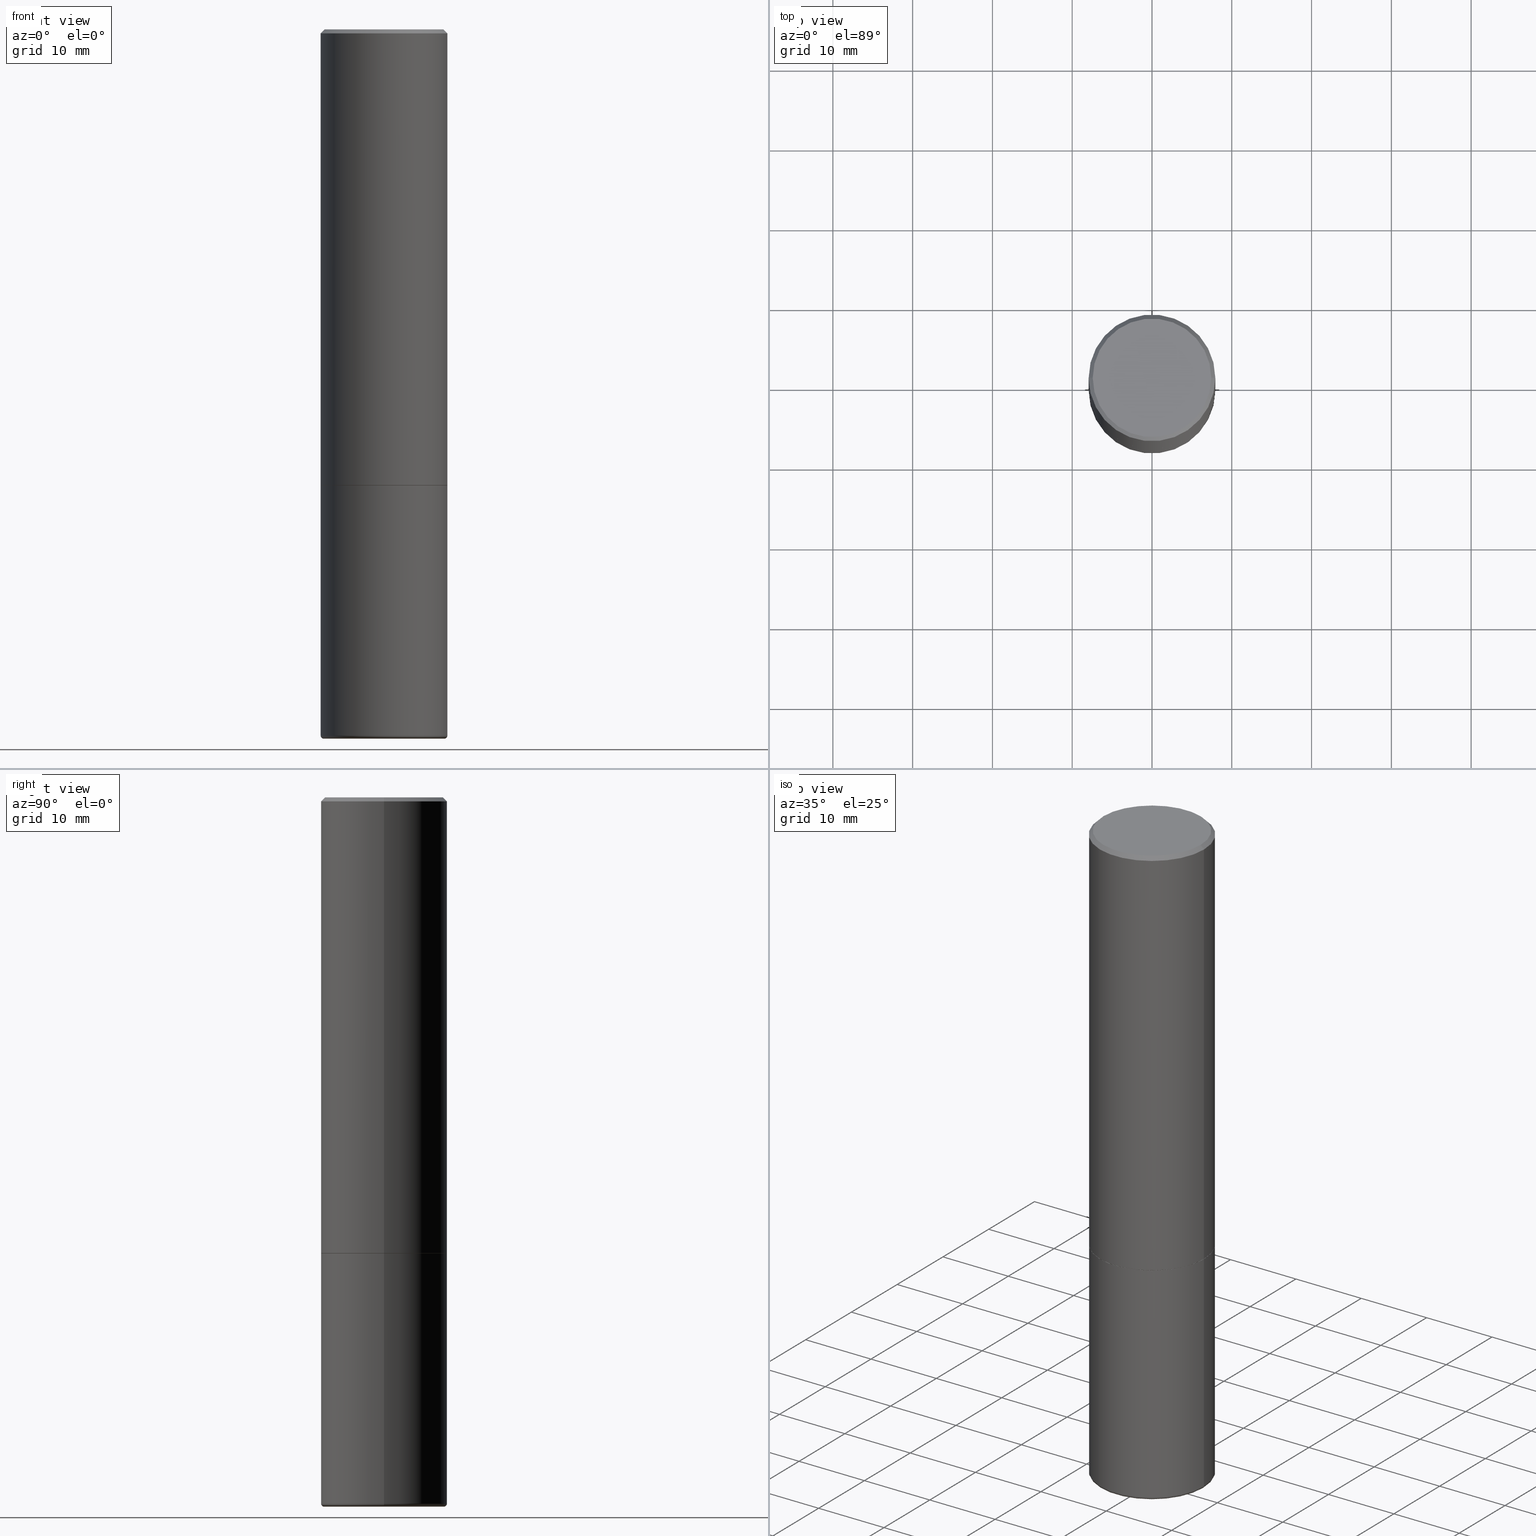
[diagram: canonical four-view strip — front | top / right | iso, engineering-drawing reading convention]
A machine part, canonical four-view strip (front | top / right | iso — engineering-drawing reading convention). The complete STEP part file that produces these views, byte-faithful:
ISO-10303-21;
HEADER;
FILE_DESCRIPTION (( 'STEP AP203' ),
    '1' );
FILE_NAME ('38137.STEP',
    '2023-03-22T20:22:35',
    ( '' ),
    ( '' ),
    'SwSTEP 2.0',
    'SolidWorks 2022',
    '' );
FILE_SCHEMA (( 'CONFIG_CONTROL_DESIGN' ));
ENDSEC;

DATA;
#1 = CALENDAR_DATE ( 2023, 22, 3 ) ;
#2 = EDGE_CURVE ( 'NONE', #92, #56, #296, .T. ) ;
#3 = CARTESIAN_POINT ( 'NONE',  ( 5.499859345110370619E-29, -7.852341531058232286E-15, -2.248999999999999222 ) ) ;
#4 = ORIENTED_EDGE ( 'NONE', *, *, #177, .F. ) ;
#5 = APPROVAL_DATE_TIME ( #42, #321 ) ;
#6 = DIRECTION ( 'NONE',  ( 1.000000000000000000, -6.982962677686265922E-15, 0.000000000000000000 ) ) ;
#7 = APPROVAL_STATUS ( 'not_yet_approved' ) ;
#8 = VERTEX_POINT ( 'NONE', #379 ) ;
#9 = ADVANCED_FACE ( 'NONE', ( #75 ), #206, .T. ) ;
#10 = CONICAL_SURFACE ( 'NONE', #315, 0.3114999999999999991, 0.7853981633972775267 ) ;
#11 = CIRCLE ( 'NONE', #86, 0.3125000000000002776 ) ;
#12 = CYLINDRICAL_SURFACE ( 'NONE', #93, 0.3124999999999998890 ) ;
#13 = CC_DESIGN_DATE_AND_TIME_ASSIGNMENT ( #84, #165, ( #101 ) ) ;
#14 = EDGE_CURVE ( 'NONE', #394, #104, #85, .T. ) ;
#15 = CARTESIAN_POINT ( 'NONE',  ( -0.3124999999999998335, 2.112346210000093866E-15, -0.02000000000000001776 ) ) ;
#16 = CARTESIAN_POINT ( 'NONE',  ( 0.3124999999999998890, -2.182175836776957558E-15, 1.523805242436229235E-29 ) ) ;
#17 = DIRECTION ( 'NONE',  ( 0.9986295347545742773, -7.033825938271996334E-15, -0.05233595624293597981 ) ) ;
#18 = PLANE ( 'NONE',  #402 ) ;
#19 = DIRECTION ( 'NONE',  ( -1.000000000000000000, 6.982962677686266711E-15, 0.000000000000000000 ) ) ;
#20 = VECTOR ( 'NONE', #422, 39.37007874015748143 ) ;
#21 = DIRECTION ( 'NONE',  ( -1.000000000000000000, 6.982962677686266711E-15, 0.000000000000000000 ) ) ;
#22 = ORIENTED_EDGE ( 'NONE', *, *, #431, .F. ) ;
#23 = DIRECTION ( 'NONE',  ( -1.000000000000000000, 7.105427357600985293E-15, 0.000000000000000000 ) ) ;
#24 = CARTESIAN_POINT ( 'NONE',  ( -1.043851414335219820E-46, 1.490343170380447200E-32, 4.268512490100411279E-18 ) ) ;
#25 = EDGE_LOOP ( 'NONE', ( #160, #432 ) ) ;
#26 = ADVANCED_FACE ( 'NONE', ( #204 ), #10, .T. ) ;
#27 = CONICAL_SURFACE ( 'NONE', #270, 751.2258538476803551, 1.518436449235074592 ) ;
#28 = EDGE_CURVE ( 'NONE', #336, #124, #406, .T. ) ;
#29 = EDGE_LOOP ( 'NONE', ( #393, #36 ) ) ;
#30 = ORIENTED_EDGE ( 'NONE', *, *, #215, .T. ) ;
#31 = CONICAL_SURFACE ( 'NONE', #217, 0.3114999999999999991, 0.7853981633972775267 ) ;
#32 = LOCAL_TIME ( 16, 22, 35.00000000000000000, #376 ) ;
#33 = ORIENTED_EDGE ( 'NONE', *, *, #278, .F. ) ;
#34 = PERSON_AND_ORGANIZATION_ROLE ( 'classification_officer' ) ;
#35 = ORIENTED_EDGE ( 'NONE', *, *, #163, .F. ) ;
#36 = ORIENTED_EDGE ( 'NONE', *, *, #163, .T. ) ;
#37 = PERSON_AND_ORGANIZATION_ROLE ( 'creator' ) ;
#38 = CARTESIAN_POINT ( 'NONE',  ( -0.3114999999999999991, -5.642492390504364798E-15, -2.249999999999999556 ) ) ;
#39 = LOCAL_TIME ( 16, 22, 35.00000000000000000, #352 ) ;
#40 = CARTESIAN_POINT ( 'NONE',  ( -0.3125000000000000000, -7.791412577036126966E-15, -2.249999999999999556 ) ) ;
#41 = ORIENTED_EDGE ( 'NONE', *, *, #196, .F. ) ;
#42 = DATE_AND_TIME ( #111, #241 ) ;
#43 = CYLINDRICAL_SURFACE ( 'NONE', #109, 0.3125000000000001665 ) ;
#44 = CARTESIAN_POINT ( 'NONE',  ( 4.890937612370276662E-31, -6.982962677686296539E-17, -0.02000000000000001776 ) ) ;
#45 = APPROVAL_ROLE ( '' ) ;
#46 = MECHANICAL_CONTEXT ( 'NONE', #176, 'mechanical' ) ;
#47 = DIRECTION ( 'NONE',  ( -1.000000000000000000, 6.982962677686265922E-15, -4.876176775795935793E-29 ) ) ;
#48 = CC_DESIGN_PERSON_AND_ORGANIZATION_ASSIGNMENT ( #404, #212, ( #232 ) ) ;
#49 = LINE ( 'NONE', #323, #344 ) ;
#50 = DIRECTION ( 'NONE',  ( -1.000000000000000000, 6.982962677686265133E-15, 0.000000000000000000 ) ) ;
#51 = VECTOR ( 'NONE', #89, 39.37007874015748854 ) ;
#52 = CARTESIAN_POINT ( 'NONE',  ( 8.518435570549975034E-29, -1.216972629788728428E-14, -3.484449827831947566 ) ) ;
#53 = DIRECTION ( 'NONE',  ( 2.445468806185136597E-29, -3.491481338843145583E-15, -1.000000000000000000 ) ) ;
#54 = ORIENTED_EDGE ( 'NONE', *, *, #302, .F. ) ;
#55 = DIRECTION ( 'NONE',  ( 1.000000000000000000, -6.982962677686265133E-15, 0.000000000000000000 ) ) ;
#56 = VERTEX_POINT ( 'NONE', #172 ) ;
#57 = APPROVAL ( #77, 'UNSPECIFIED' ) ;
#58 = ORIENTED_EDGE ( 'NONE', *, *, #278, .T. ) ;
#59 = CYLINDRICAL_SURFACE ( 'NONE', #304, 0.3124999999999998890 ) ;
#60 = DIMENSIONAL_EXPONENTS ( 1.000000000000000000, 0.000000000000000000, 0.000000000000000000, 0.000000000000000000, 0.000000000000000000, 0.000000000000000000, 0.000000000000000000 ) ;
#61 =( LENGTH_UNIT ( ) NAMED_UNIT ( * ) SI_UNIT ( $, .METRE. ) );
#62 = DIRECTION ( 'NONE',  ( 1.000000000000000000, -6.982962677686265922E-15, 4.876176775795935793E-29 ) ) ;
#63 = AXIS2_PLACEMENT_3D ( 'NONE', #218, #258, #90 ) ;
#64 = CC_DESIGN_SECURITY_CLASSIFICATION ( #101, ( #398 ) ) ;
#65 = DESIGN_CONTEXT ( 'detailed design', #142, 'design' ) ;
#66 = EDGE_CURVE ( 'NONE', #336, #92, #242, .T. ) ;
#67 = ORIENTED_EDGE ( 'NONE', *, *, #254, .T. ) ;
#68 = DIRECTION ( 'NONE',  ( -2.445468806185136597E-29, 3.491481338843145583E-15, 1.000000000000000000 ) ) ;
#69 = PRODUCT_DEFINITION_SHAPE ( 'NONE', 'NONE',  #232 ) ;
#70 = AXIS2_PLACEMENT_3D ( 'NONE', #96, #388, #358 ) ;
#71 = ORIENTED_EDGE ( 'NONE', *, *, #203, .F. ) ;
#72 = ORIENTED_EDGE ( 'NONE', *, *, #357, .T. ) ;
#73 = CARTESIAN_POINT ( 'NONE',  ( -0.3124999999999998890, 2.220446049250312292E-15, -1.537167215704657391E-29 ) ) ;
#74 = CARTESIAN_POINT ( 'NONE',  ( 5.502304813916556222E-29, -7.855833012397076871E-15, -2.249999999999999556 ) ) ;
#75 = FACE_OUTER_BOUND ( 'NONE', #338, .T. ) ;
#76 = AXIS2_PLACEMENT_3D ( 'NONE', #108, #138, #47 ) ;
#77 = APPROVAL_STATUS ( 'not_yet_approved' ) ;
#78 = APPLICATION_PROTOCOL_DEFINITION ( 'international standard', 'config_control_design', 1994, #142 ) ;
#79 = DIRECTION ( 'NONE',  ( -1.000000000000000000, 6.982962677686265133E-15, 0.000000000000000000 ) ) ;
#80 = CC_DESIGN_PERSON_AND_ORGANIZATION_ASSIGNMENT ( #276, #34, ( #101 ) ) ;
#81 = DIRECTION ( 'NONE',  ( -2.445468806185136597E-29, 3.491481338843145583E-15, 1.000000000000000000 ) ) ;
#82 = DIRECTION ( 'NONE',  ( -2.445468806185136597E-29, 3.491481338843145583E-15, 1.000000000000000000 ) ) ;
#83 = DIRECTION ( 'NONE',  ( -2.445468806185136597E-29, 3.491481338843145583E-15, 1.000000000000000000 ) ) ;
#84 = DATE_AND_TIME ( #312, #345 ) ;
#85 = CIRCLE ( 'NONE', #396, 0.3114999999999999991 ) ;
#86 = AXIS2_PLACEMENT_3D ( 'NONE', #181, #415, #320 ) ;
#87 = ORIENTED_EDGE ( 'NONE', *, *, #294, .F. ) ;
#88 = DIRECTION ( 'NONE',  ( 0.000000000000000000, 0.000000000000000000, 1.000000000000000000 ) ) ;
#89 = DIRECTION ( 'NONE',  ( -0.9986295347545742773, 6.790662755453670044E-15, -0.05233595624293597981 ) ) ;
#90 = DIRECTION ( 'NONE',  ( 1.000000000000000000, -6.982962677686265922E-15, 0.000000000000000000 ) ) ;
#91 = AXIS2_PLACEMENT_3D ( 'NONE', #348, #291, #117 ) ;
#92 = VERTEX_POINT ( 'NONE', #399 ) ;
#93 = AXIS2_PLACEMENT_3D ( 'NONE', #175, #316, #325 ) ;
#94 = DIRECTION ( 'NONE',  ( -2.445468806185136597E-29, 3.491481338843145583E-15, 1.000000000000000000 ) ) ;
#95 = CARTESIAN_POINT ( 'NONE',  ( -0.3125000000000001665, 2.220446049250314264E-15, -1.537167215704658792E-29 ) ) ;
#96 = CARTESIAN_POINT ( 'NONE',  ( 8.522509061005313517E-29, -1.216788424017580796E-14, -3.485020556978680517 ) ) ;
#97 = AXIS2_PLACEMENT_3D ( 'NONE', #310, #231, #188 ) ;
#98 = CARTESIAN_POINT ( 'NONE',  ( -0.3114999999999999991, -5.637193936156142396E-15, -2.249999999999999556 ) ) ;
#99 = LENGTH_MEASURE_WITH_UNIT ( LENGTH_MEASURE( 0.02539999999999999897 ), #61 );
#100 = EDGE_LOOP ( 'NONE', ( #295, #195, #243, #205 ) ) ;
#101 = SECURITY_CLASSIFICATION ( '', '', #382 ) ;
#102 = ORIENTED_EDGE ( 'NONE', *, *, #254, .F. ) ;
#103 = CALENDAR_DATE ( 2023, 22, 3 ) ;
#104 = VERTEX_POINT ( 'NONE', #98 ) ;
#105 = FACE_OUTER_BOUND ( 'NONE', #395, .T. ) ;
#106 = APPLICATION_PROTOCOL_DEFINITION ( 'international standard', 'config_control_design', 1994, #176 ) ;
#107 = APPROVAL_ROLE ( '' ) ;
#108 = CARTESIAN_POINT ( 'NONE',  ( 2.182175836777013173E-15, 0.3124999999999921729, -2.250000000000000444 ) ) ;
#109 = AXIS2_PLACEMENT_3D ( 'NONE', #183, #113, #319 ) ;
#110 = CC_DESIGN_PERSON_AND_ORGANIZATION_ASSIGNMENT ( #247, #377, ( #123 ) ) ;
#111 = CALENDAR_DATE ( 2023, 22, 3 ) ;
#112 = DIRECTION ( 'NONE',  ( 1.000000000000000000, -6.982962677686265922E-15, 0.000000000000000000 ) ) ;
#113 = DIRECTION ( 'NONE',  ( -2.445468806185136597E-29, 3.491481338843145583E-15, 1.000000000000000000 ) ) ;
#114 = AXIS2_PLACEMENT_3D ( 'NONE', #192, #193, #264 ) ;
#115 = CIRCLE ( 'NONE', #368, 0.01500000000000028394 ) ;
#116 = ORGANIZATION ( 'UNSPECIFIED', 'UNSPECIFIED', '' ) ;
#117 = DIRECTION ( 'NONE',  ( 1.000000000000000000, -6.982962677686269077E-15, 0.000000000000000000 ) ) ;
#118 = DIRECTION ( 'NONE',  ( -2.438088387897960049E-29, 3.491481338843145188E-15, 1.000000000000000000 ) ) ;
#119 = CARTESIAN_POINT ( 'NONE',  ( 0.2924999999999998157, -2.110215457714318748E-15, 4.268512490114932791E-18 ) ) ;
#120 = CARTESIAN_POINT ( 'NONE',  ( 5.502304813916556222E-29, -7.855833012397076871E-15, -2.249999999999999556 ) ) ;
#121 = CARTESIAN_POINT ( 'NONE',  ( 0.3114999999999999991, -1.003102588649634920E-14, -2.249999999999999556 ) ) ;
#122 = CIRCLE ( 'NONE', #327, 0.2967149606563558861 ) ;
#123 = PRODUCT ( '38137', '38137', '', ( #46 ) ) ;
#124 = VERTEX_POINT ( 'NONE', #397 ) ;
#125 = ORIENTED_EDGE ( 'NONE', *, *, #294, .T. ) ;
#126 = ORIENTED_EDGE ( 'NONE', *, *, #2, .F. ) ;
#127 = EDGE_LOOP ( 'NONE', ( #4, #273, #150, #136 ) ) ;
#128 = ORIENTED_EDGE ( 'NONE', *, *, #366, .F. ) ;
#129 = EDGE_CURVE ( 'NONE', #184, #269, #290, .T. ) ;
#130 = CARTESIAN_POINT ( 'NONE',  ( 8.522509061005313517E-29, -1.216788424017580796E-14, -3.485020556978680517 ) ) ;
#131 = AXIS2_PLACEMENT_3D ( 'NONE', #440, #88, #219 ) ;
#132 =( NAMED_UNIT ( * ) PLANE_ANGLE_UNIT ( ) SI_UNIT ( $, .RADIAN. ) );
#133 = CARTESIAN_POINT ( 'NONE',  ( 0.3125000000000002776, -1.435006007695276788E-14, -3.485020556978680073 ) ) ;
#134 = EDGE_LOOP ( 'NONE', ( #236, #162 ) ) ;
#135 = DATE_AND_TIME ( #174, #39 ) ;
#136 = ORIENTED_EDGE ( 'NONE', *, *, #2, .T. ) ;
#137 = COORDINATED_UNIVERSAL_TIME_OFFSET ( 5, 0, .BEHIND. ) ;
#138 = DIRECTION ( 'NONE',  ( 2.438088387897960049E-29, -3.491481338843145188E-15, -1.000000000000000000 ) ) ;
#139 = AXIS2_PLACEMENT_3D ( 'NONE', #130, #161, #441 ) ;
#140 = CONICAL_SURFACE ( 'NONE', #356, 0.3124999999999998335, 0.7853981633974476129 ) ;
#141 = CARTESIAN_POINT ( 'NONE',  ( -0.3125000000000002776, -7.791412577036125389E-15, -3.485020556978680073 ) ) ;
#142 = APPLICATION_CONTEXT ( 'configuration controlled 3d designs of mechanical parts and assemblies' ) ;
#143 = ORIENTED_EDGE ( 'NONE', *, *, #145, .F. ) ;
#144 = DIRECTION ( 'NONE',  ( 1.000000000000000000, -6.982962677686265133E-15, 0.000000000000000000 ) ) ;
#145 = EDGE_CURVE ( 'NONE', #8, #227, #224, .T. ) ;
#146 = CARTESIAN_POINT ( 'NONE',  ( 0.000000000000000000, 0.000000000000000000, 0.000000000000000000 ) ) ;
#147 = CARTESIAN_POINT ( 'NONE',  ( -0.2924999999999998157, 2.077431396611662611E-15, 4.268512490086005323E-18 ) ) ;
#148 = APPROVAL_PERSON_ORGANIZATION ( #303, #151, #216 ) ;
#149 = FACE_OUTER_BOUND ( 'NONE', #134, .T. ) ;
#150 = ORIENTED_EDGE ( 'NONE', *, *, #200, .T. ) ;
#151 = APPROVAL ( #7, 'UNSPECIFIED' ) ;
#152 = VECTOR ( 'NONE', #167, 39.37007874015748143 ) ;
#153 = EDGE_LOOP ( 'NONE', ( #409, #365, #143 ) ) ;
#154 = ADVANCED_FACE ( 'NONE', ( #423 ), #43, .T. ) ;
#155 = ORIENTED_EDGE ( 'NONE', *, *, #215, .F. ) ;
#156 = ADVANCED_FACE ( 'NONE', ( #359 ), #390, .T. ) ;
#157 = CIRCLE ( 'NONE', #197, 0.3125000000000000000 ) ;
#158 = VECTOR ( 'NONE', #349, 39.37007874015748143 ) ;
#159 = DIRECTION ( 'NONE',  ( -2.445468806185136597E-29, 3.491481338843145583E-15, 1.000000000000000000 ) ) ;
#160 = ORIENTED_EDGE ( 'NONE', *, *, #129, .T. ) ;
#161 = DIRECTION ( 'NONE',  ( -2.445468806185136597E-29, 3.491481338843145583E-15, 1.000000000000000000 ) ) ;
#162 = ORIENTED_EDGE ( 'NONE', *, *, #433, .F. ) ;
#163 = EDGE_CURVE ( 'NONE', #324, #341, #157, .T. ) ;
#164 = DIRECTION ( 'NONE',  ( -2.445468806185136597E-29, 3.491481338843145583E-15, 1.000000000000000000 ) ) ;
#165 = DATE_TIME_ROLE ( 'classification_date' ) ;
#166 = PERSON_AND_ORGANIZATION ( #274, #116 ) ;
#167 = DIRECTION ( 'NONE',  ( -0.7071067811864267805, 7.493145998869918709E-15, 0.7071067811866682540 ) ) ;
#168 = CONICAL_SURFACE ( 'NONE', #260, 0.3124999999999998335, 0.7853981633974476129 ) ;
#169 = APPROVAL_PERSON_ORGANIZATION ( #281, #57, #107 ) ;
#170 = CC_DESIGN_PERSON_AND_ORGANIZATION_ASSIGNMENT ( #166, #305, ( #398 ) ) ;
#171 = APPROVAL_DATE_TIME ( #135, #57 ) ;
#172 = CARTESIAN_POINT ( 'NONE',  ( 0.3124999999999998335, -2.213735251080465334E-15, -0.02000000000000001776 ) ) ;
#173 = DIRECTION ( 'NONE',  ( -2.445468806185136877E-29, 3.491481338843145188E-15, 1.000000000000000000 ) ) ;
#174 = CALENDAR_DATE ( 2023, 22, 3 ) ;
#175 = CARTESIAN_POINT ( 'NONE',  ( 0.000000000000000000, 0.000000000000000000, 0.000000000000000000 ) ) ;
#176 = APPLICATION_CONTEXT ( 'configuration controlled 3d designs of mechanical parts and assemblies' ) ;
#177 = EDGE_CURVE ( 'NONE', #269, #56, #353, .T. ) ;
#178 = LINE ( 'NONE', #15, #259 ) ;
#179 = CLOSED_SHELL ( 'NONE', ( #26, #209, #298, #363, #266, #221, #425, #292 ) ) ;
#180 = AXIS2_PLACEMENT_3D ( 'NONE', #438, #339, #301 ) ;
#181 = CARTESIAN_POINT ( 'NONE',  ( 8.522509061005312396E-29, -1.216788424017580638E-14, -3.485020556978680073 ) ) ;
#182 = EDGE_CURVE ( 'NONE', #271, #227, #49, .T. ) ;
#183 = CARTESIAN_POINT ( 'NONE',  ( 0.000000000000000000, 0.000000000000000000, 0.000000000000000000 ) ) ;
#184 = VERTEX_POINT ( 'NONE', #147 ) ;
#185 = DIRECTION ( 'NONE',  ( 0.7071067811865469066, -7.319954787623252890E-15, -0.7071067811865479058 ) ) ;
#186 = ORIENTED_EDGE ( 'NONE', *, *, #14, .T. ) ;
#187 = DIRECTION ( 'NONE',  ( -2.445468806185136597E-29, 3.491481338843145583E-15, 1.000000000000000000 ) ) ;
#188 = DIRECTION ( 'NONE',  ( 1.000000000000000000, -6.982962677686266711E-15, 0.000000000000000000 ) ) ;
#189 = LINE ( 'NONE', #364, #225 ) ;
#190 = AXIS2_PLACEMENT_3D ( 'NONE', #3, #414, #283 ) ;
#191 = DIRECTION ( 'NONE',  ( 2.445468806185136597E-29, -3.491481338843145583E-15, -1.000000000000000000 ) ) ;
#192 = CARTESIAN_POINT ( 'NONE',  ( -1.043851414335219820E-46, 1.490343170380447200E-32, 4.268512490100411279E-18 ) ) ;
#193 = DIRECTION ( 'NONE',  ( -2.445468806185136597E-29, 3.491481338843145583E-15, 1.000000000000000000 ) ) ;
#194 = FACE_OUTER_BOUND ( 'NONE', #300, .T. ) ;
#195 = ORIENTED_EDGE ( 'NONE', *, *, #177, .T. ) ;
#196 = EDGE_CURVE ( 'NONE', #124, #336, #417, .T. ) ;
#197 = AXIS2_PLACEMENT_3D ( 'NONE', #262, #94, #55 ) ;
#198 = AXIS2_PLACEMENT_3D ( 'NONE', #263, #68, #332 ) ;
#199 = ORIENTED_EDGE ( 'NONE', *, *, #66, .T. ) ;
#200 = EDGE_CURVE ( 'NONE', #184, #92, #178, .T. ) ;
#201 = EDGE_LOOP ( 'NONE', ( #240, #199, #429, #102 ) ) ;
#202 = EDGE_LOOP ( 'NONE', ( #128, #400, #430, #360 ) ) ;
#203 = EDGE_CURVE ( 'NONE', #210, #324, #230, .T. ) ;
#204 = FACE_OUTER_BOUND ( 'NONE', #373, .T. ) ;
#205 = ORIENTED_EDGE ( 'NONE', *, *, #200, .F. ) ;
#206 = TOROIDAL_SURFACE ( 'NONE', #139, 0.2974999999999999867, 0.01500000000000027527 ) ;
#207 = CIRCLE ( 'NONE', #97, 0.3124999999999998335 ) ;
#208 = CARTESIAN_POINT ( 'NONE',  ( 5.502304813916556222E-29, -7.855833012397076871E-15, -2.249999999999999556 ) ) ;
#209 = ADVANCED_FACE ( 'NONE', ( #424 ), #59, .T. ) ;
#210 = VERTEX_POINT ( 'NONE', #141 ) ;
#211 = CARTESIAN_POINT ( 'NONE',  ( 5.502304813916556222E-29, -7.855833012397076871E-15, -2.249999999999999556 ) ) ;
#212 = PERSON_AND_ORGANIZATION_ROLE ( 'creator' ) ;
#213 = CARTESIAN_POINT ( 'NONE',  ( 5.502304813916556222E-29, -7.855833012397076871E-15, -2.249999999999999556 ) ) ;
#214 = DIRECTION ( 'NONE',  ( 1.000000000000000000, -6.982962677686266711E-15, 4.876067333457692840E-29 ) ) ;
#215 = EDGE_CURVE ( 'NONE', #227, #367, #115, .T. ) ;
#216 = APPROVAL_ROLE ( '' ) ;
#217 = AXIS2_PLACEMENT_3D ( 'NONE', #211, #164, #246 ) ;
#218 = CARTESIAN_POINT ( 'NONE',  ( 8.559140821647976968E-29, -1.222018468595100934E-14, -3.500000000000000000 ) ) ;
#219 = DIRECTION ( 'NONE',  ( 1.000000000000000000, 0.000000000000000000, 0.000000000000000000 ) ) ;
#220 = DIRECTION ( 'NONE',  ( -2.445468806185136597E-29, 3.491481338843145583E-15, 1.000000000000000000 ) ) ;
#221 = ADVANCED_FACE ( 'NONE', ( #288 ), #31, .T. ) ;
#222 = DATE_AND_TIME ( #103, #32 ) ;
#223 = DIRECTION ( 'NONE',  ( -0.7071067811865469066, 2.468850131082251144E-15, -0.7071067811865479058 ) ) ;
#224 = CIRCLE ( 'NONE', #63, 0.2967149606563558861 ) ;
#225 = VECTOR ( 'NONE', #265, 39.37007874015748143 ) ;
#226 = CARTESIAN_POINT ( 'NONE',  ( 1.047994128167879265E-27, -1.496257867800555549E-13, -42.85452856798943344 ) ) ;
#227 = VERTEX_POINT ( 'NONE', #280 ) ;
#228 = DIRECTION ( 'NONE',  ( -2.445468806185136597E-29, 3.491481338843145583E-15, 1.000000000000000000 ) ) ;
#229 = EDGE_LOOP ( 'NONE', ( #328, #403, #67, #126 ) ) ;
#230 = LINE ( 'NONE', #95, #331 ) ;
#231 = DIRECTION ( 'NONE',  ( -2.445468806185136597E-29, 3.491481338843145583E-15, 1.000000000000000000 ) ) ;
#232 = PRODUCT_DEFINITION ( 'UNKNOWN', '', #398, #65 ) ;
#233 = VECTOR ( 'NONE', #185, 39.37007874015748854 ) ;
#234 = LOCAL_TIME ( 16, 22, 35.00000000000000000, #137 ) ;
#235 = EDGE_CURVE ( 'NONE', #367, #210, #239, .T. ) ;
#236 = ORIENTED_EDGE ( 'NONE', *, *, #14, .F. ) ;
#237 = PLANE ( 'NONE',  #180 ) ;
#238 = CC_DESIGN_DATE_AND_TIME_ASSIGNMENT ( #222, #411, ( #232 ) ) ;
#239 = CIRCLE ( 'NONE', #317, 0.3125000000000002776 ) ;
#240 = ORIENTED_EDGE ( 'NONE', *, *, #196, .T. ) ;
#241 = LOCAL_TIME ( 16, 22, 35.00000000000000000, #340 ) ;
#242 = LINE ( 'NONE', #73, #250 ) ;
#243 = ORIENTED_EDGE ( 'NONE', *, *, #248, .T. ) ;
#244 = AXIS2_PLACEMENT_3D ( 'NONE', #24, #82, #214 ) ;
#245 = DIRECTION ( 'NONE',  ( -2.445468806185136597E-29, 3.491481338843145583E-15, 1.000000000000000000 ) ) ;
#246 = DIRECTION ( 'NONE',  ( 1.000000000000000000, -6.982962677686265922E-15, 0.000000000000000000 ) ) ;
#247 = PERSON_AND_ORGANIZATION ( #274, #116 ) ;
#248 = EDGE_CURVE ( 'NONE', #56, #92, #207, .T. ) ;
#249 = CARTESIAN_POINT ( 'NONE',  ( 0.3125000000000000000, -1.003800884917403364E-14, -2.249999999999999556 ) ) ;
#250 = VECTOR ( 'NONE', #436, 39.37007874015748143 ) ;
#251 = COORDINATED_UNIVERSAL_TIME_OFFSET ( 5, 0, .BEHIND. ) ;
#252 = CARTESIAN_POINT ( 'NONE',  ( -3.834747876743175782E-18, -1.216589155001045545E-14, -3.484449827831947566 ) ) ;
#253 = DIRECTION ( 'NONE',  ( -2.445468806185136597E-29, 3.491481338843145583E-15, 1.000000000000000000 ) ) ;
#254 = EDGE_CURVE ( 'NONE', #124, #56, #362, .T. ) ;
#255 = MANIFOLD_SOLID_BREP ( 'Body-Move/Copy2[2]', #179 ) ;
#256 = ORIENTED_EDGE ( 'NONE', *, *, #357, .F. ) ;
#257 = UNCERTAINTY_MEASURE_WITH_UNIT (LENGTH_MEASURE( 1.000000000000000082E-05 ), #333, 'distance_accuracy_value', 'NONE');
#258 = DIRECTION ( 'NONE',  ( -2.445468806185136597E-29, 3.491481338843145583E-15, 1.000000000000000000 ) ) ;
#259 = VECTOR ( 'NONE', #223, 39.37007874015748854 ) ;
#260 = AXIS2_PLACEMENT_3D ( 'NONE', #391, #355, #50 ) ;
#261 = CARTESIAN_POINT ( 'NONE',  ( 0.3125000000000001665, -2.182175836776959530E-15, 1.523805242436230636E-29 ) ) ;
#262 = CARTESIAN_POINT ( 'NONE',  ( 5.502304813916556222E-29, -7.855833012397075293E-15, -2.249999999999999556 ) ) ;
#263 = CARTESIAN_POINT ( 'NONE',  ( 5.502304813916556222E-29, -7.855833012397075293E-15, -2.249999999999999556 ) ) ;
#264 = DIRECTION ( 'NONE',  ( 1.000000000000000000, -6.982962677686266711E-15, 4.876067333457692840E-29 ) ) ;
#265 = DIRECTION ( 'NONE',  ( 0.7071067811864267805, -2.468850131080992517E-15, 0.7071067811866682540 ) ) ;
#266 = ADVANCED_FACE ( 'NONE', ( #289 ), #12, .T. ) ;
#267 = AXIS2_PLACEMENT_3D ( 'NONE', #226, #53, #21 ) ;
#268 = ORIENTED_EDGE ( 'NONE', *, *, #361, .T. ) ;
#269 = VERTEX_POINT ( 'NONE', #119 ) ;
#270 = AXIS2_PLACEMENT_3D ( 'NONE', #378, #191, #19 ) ;
#271 = VERTEX_POINT ( 'NONE', #52 ) ;
#272 = DIRECTION ( 'NONE',  ( 1.000000000000000000, -6.982962677686265922E-15, 0.000000000000000000 ) ) ;
#273 = ORIENTED_EDGE ( 'NONE', *, *, #129, .F. ) ;
#274 = PERSON ( 'UNSPECIFIED', 'UNSPECIFIED', 'UNSPECIFIED', ('UNSPECIFIED'), ('UNSPECIFIED'), ('UNSPECIFIED') ) ;
#275 = AXIS2_PLACEMENT_3D ( 'NONE', #146, #253, #427 ) ;
#276 = PERSON_AND_ORGANIZATION ( #274, #116 ) ;
#277 = AXIS2_PLACEMENT_3D ( 'NONE', #74, #159, #272 ) ;
#278 = EDGE_CURVE ( 'NONE', #8, #210, #389, .T. ) ;
#279 = DIRECTION ( 'NONE',  ( 1.000000000000000000, -6.982962677686265922E-15, 0.000000000000000000 ) ) ;
#280 = CARTESIAN_POINT ( 'NONE',  ( 0.2967149606563558861, -1.429213418212549008E-14, -3.500000000000000000 ) ) ;
#281 = PERSON_AND_ORGANIZATION ( #274, #116 ) ;
#282 = LINE ( 'NONE', #38, #152 ) ;
#283 = DIRECTION ( 'NONE',  ( 1.000000000000000000, -6.982962677686269077E-15, 0.000000000000000000 ) ) ;
#284 = APPROVAL_DATE_TIME ( #347, #151 ) ;
#285 = CIRCLE ( 'NONE', #198, 0.3125000000000000000 ) ;
#286 = DIRECTION ( 'NONE',  ( -6.982962677686266711E-15, -1.000000000000000000, 3.491481338843145583E-15 ) ) ;
#287 = CARTESIAN_POINT ( 'NONE',  ( -0.3125000000000000000, -1.740639529667232739E-15, -2.248999999999999222 ) ) ;
#288 = FACE_OUTER_BOUND ( 'NONE', #202, .T. ) ;
#289 = FACE_OUTER_BOUND ( 'NONE', #229, .T. ) ;
#290 = CIRCLE ( 'NONE', #114, 0.2924999999999998157 ) ;
#291 = DIRECTION ( 'NONE',  ( -2.445468806185136597E-29, 3.491481338843145583E-15, 1.000000000000000000 ) ) ;
#292 = ADVANCED_FACE ( 'NONE', ( #330 ), #237, .F. ) ;
#293 = CC_DESIGN_APPROVAL ( #321, ( #398 ) ) ;
#294 = EDGE_CURVE ( 'NONE', #367, #341, #442, .T. ) ;
#295 = ORIENTED_EDGE ( 'NONE', *, *, #322, .F. ) ;
#296 = CIRCLE ( 'NONE', #387, 0.3124999999999998335 ) ;
#297 = CC_DESIGN_PERSON_AND_ORGANIZATION_ASSIGNMENT ( #380, #37, ( #398 ) ) ;
#298 = ADVANCED_FACE ( 'NONE', ( #314 ), #168, .T. ) ;
#299 = ORIENTED_EDGE ( 'NONE', *, *, #235, .F. ) ;
#300 = EDGE_LOOP ( 'NONE', ( #72, #58, #299, #155 ) ) ;
#301 = DIRECTION ( 'NONE',  ( -1.000000000000000000, 6.982962677686265922E-15, -4.876176775795935793E-29 ) ) ;
#302 = EDGE_CURVE ( 'NONE', #210, #367, #11, .T. ) ;
#303 = PERSON_AND_ORGANIZATION ( #274, #116 ) ;
#304 = AXIS2_PLACEMENT_3D ( 'NONE', #419, #187, #318 ) ;
#305 = PERSON_AND_ORGANIZATION_ROLE ( 'design_supplier' ) ;
#306 = ADVANCED_FACE ( 'NONE', ( #386 ), #374, .F. ) ;
#307 = TOROIDAL_SURFACE ( 'NONE', #70, 0.2974999999999999867, 0.01500000000000027527 ) ;
#308 = CARTESIAN_POINT ( 'NONE',  ( 4.890937612370276662E-31, -6.982962677686296539E-17, -0.02000000000000001776 ) ) ;
#309 = FACE_OUTER_BOUND ( 'NONE', #29, .T. ) ;
#310 = CARTESIAN_POINT ( 'NONE',  ( 4.890937612370276662E-31, -6.982962677686296539E-17, -0.02000000000000001776 ) ) ;
#311 = PERSON_AND_ORGANIZATION ( #274, #116 ) ;
#312 = CALENDAR_DATE ( 2023, 22, 3 ) ;
#313 = PLANE ( 'NONE',  #76 ) ;
#314 = FACE_OUTER_BOUND ( 'NONE', #100, .T. ) ;
#315 = AXIS2_PLACEMENT_3D ( 'NONE', #213, #245, #279 ) ;
#316 = DIRECTION ( 'NONE',  ( -2.445468806185136597E-29, 3.491481338843145583E-15, 1.000000000000000000 ) ) ;
#317 = AXIS2_PLACEMENT_3D ( 'NONE', #410, #83, #346 ) ;
#318 = DIRECTION ( 'NONE',  ( 1.000000000000000000, -6.982962677686266711E-15, 4.876176775795935232E-29 ) ) ;
#319 = DIRECTION ( 'NONE',  ( 1.000000000000000000, -6.982962677686266711E-15, 4.876176775795935232E-29 ) ) ;
#320 = DIRECTION ( 'NONE',  ( 1.000000000000000000, -6.982962677686269077E-15, 0.000000000000000000 ) ) ;
#321 = APPROVAL ( #342, 'UNSPECIFIED' ) ;
#322 = EDGE_CURVE ( 'NONE', #269, #184, #407, .T. ) ;
#323 = CARTESIAN_POINT ( 'NONE',  ( 3.834747876913598242E-18, -1.216589155001045545E-14, -3.484449827831947566 ) ) ;
#324 = VERTEX_POINT ( 'NONE', #40 ) ;
#325 = DIRECTION ( 'NONE',  ( 1.000000000000000000, -6.982962677686266711E-15, 4.876176775795935232E-29 ) ) ;
#326 = ADVANCED_FACE ( 'NONE', ( #309 ), #313, .F. ) ;
#327 = AXIS2_PLACEMENT_3D ( 'NONE', #421, #220, #112 ) ;
#328 = ORIENTED_EDGE ( 'NONE', *, *, #66, .F. ) ;
#329 = PRODUCT_RELATED_PRODUCT_CATEGORY ( 'detail', '', ( #123 ) ) ;
#330 = FACE_OUTER_BOUND ( 'NONE', #25, .T. ) ;
#331 = VECTOR ( 'NONE', #173, 39.37007874015748143 ) ;
#332 = DIRECTION ( 'NONE',  ( 1.000000000000000000, -6.982962677686265133E-15, 0.000000000000000000 ) ) ;
#333 =( CONVERSION_BASED_UNIT ( 'INCH', #99 ) LENGTH_UNIT ( ) NAMED_UNIT ( #60 ) );
#334 = ORIENTED_EDGE ( 'NONE', *, *, #182, .F. ) ;
#335 = ORIENTED_EDGE ( 'NONE', *, *, #437, .F. ) ;
#336 = VERTEX_POINT ( 'NONE', #287 ) ;
#337 = CLOSED_SHELL ( 'NONE', ( #306, #416, #156, #326, #154, #9, #385 ) ) ;
#338 = EDGE_LOOP ( 'NONE', ( #33, #375, #30, #54 ) ) ;
#339 = DIRECTION ( 'NONE',  ( 2.438088387897960049E-29, -3.491481338843145188E-15, -1.000000000000000000 ) ) ;
#340 = COORDINATED_UNIVERSAL_TIME_OFFSET ( 5, 0, .BEHIND. ) ;
#341 = VERTEX_POINT ( 'NONE', #249 ) ;
#342 = APPROVAL_STATUS ( 'not_yet_approved' ) ;
#343 = DIRECTION ( 'NONE',  ( 2.445468806185136597E-29, -3.491481338843145583E-15, -1.000000000000000000 ) ) ;
#344 = VECTOR ( 'NONE', #17, 39.37007874015748854 ) ;
#345 = LOCAL_TIME ( 16, 22, 35.00000000000000000, #251 ) ;
#346 = DIRECTION ( 'NONE',  ( 1.000000000000000000, -6.982962677686269077E-15, 0.000000000000000000 ) ) ;
#347 = DATE_AND_TIME ( #1, #234 ) ;
#348 = CARTESIAN_POINT ( 'NONE',  ( 5.499859345110370619E-29, -7.852341531058232286E-15, -2.248999999999999222 ) ) ;
#349 = DIRECTION ( 'NONE',  ( -2.445468806185136877E-29, 3.491481338843145188E-15, 1.000000000000000000 ) ) ;
#350 = LINE ( 'NONE', #252, #51 ) ;
#351 = ADVANCED_BREP_SHAPE_REPRESENTATION ( '38137', ( #405, #255, #131 ), #381 ) ;
#352 = COORDINATED_UNIVERSAL_TIME_OFFSET ( 5, 0, .BEHIND. ) ;
#353 = LINE ( 'NONE', #383, #233 ) ;
#354 = DIRECTION ( 'NONE',  ( 1.000000000000000000, -6.982962677686266711E-15, 0.000000000000000000 ) ) ;
#355 = DIRECTION ( 'NONE',  ( 2.445468806185136597E-29, -3.491481338843145583E-15, -1.000000000000000000 ) ) ;
#356 = AXIS2_PLACEMENT_3D ( 'NONE', #308, #343, #79 ) ;
#357 = EDGE_CURVE ( 'NONE', #227, #8, #122, .T. ) ;
#358 = DIRECTION ( 'NONE',  ( 1.000000000000000000, -6.982962677686269077E-15, 4.883557194083113462E-29 ) ) ;
#359 = FACE_OUTER_BOUND ( 'NONE', #369, .T. ) ;
#360 = ORIENTED_EDGE ( 'NONE', *, *, #28, .F. ) ;
#361 = EDGE_CURVE ( 'NONE', #271, #8, #350, .T. ) ;
#362 = LINE ( 'NONE', #16, #20 ) ;
#363 = ADVANCED_FACE ( 'NONE', ( #408 ), #140, .T. ) ;
#364 = CARTESIAN_POINT ( 'NONE',  ( 0.3114999999999999991, -1.003102588649634920E-14, -2.249999999999999556 ) ) ;
#365 = ORIENTED_EDGE ( 'NONE', *, *, #182, .T. ) ;
#366 = EDGE_CURVE ( 'NONE', #104, #336, #282, .T. ) ;
#367 = VERTEX_POINT ( 'NONE', #133 ) ;
#368 = AXIS2_PLACEMENT_3D ( 'NONE', #412, #286, #144 ) ;
#369 = EDGE_LOOP ( 'NONE', ( #401, #439, #335, #87 ) ) ;
#370 = CC_DESIGN_APPROVAL ( #57, ( #232 ) ) ;
#371 = CIRCLE ( 'NONE', #277, 0.3114999999999999991 ) ;
#372 = ORIENTED_EDGE ( 'NONE', *, *, #302, .T. ) ;
#373 = EDGE_LOOP ( 'NONE', ( #186, #392, #41, #22 ) ) ;
#374 = CONICAL_SURFACE ( 'NONE', #267, 751.2258538476803551, 1.518436449235074592 ) ;
#375 = ORIENTED_EDGE ( 'NONE', *, *, #145, .T. ) ;
#376 = COORDINATED_UNIVERSAL_TIME_OFFSET ( 5, 0, .BEHIND. ) ;
#377 = PERSON_AND_ORGANIZATION_ROLE ( 'design_owner' ) ;
#378 = CARTESIAN_POINT ( 'NONE',  ( 1.047994128167879265E-27, -1.496257867800555549E-13, -42.85452856798943344 ) ) ;
#379 = CARTESIAN_POINT ( 'NONE',  ( -0.2967149606563558861, -1.002966813900966153E-14, -3.500000000000000000 ) ) ;
#380 = PERSON_AND_ORGANIZATION ( #274, #116 ) ;
#381 =( GEOMETRIC_REPRESENTATION_CONTEXT ( 3 ) GLOBAL_UNCERTAINTY_ASSIGNED_CONTEXT ( ( #257 ) ) GLOBAL_UNIT_ASSIGNED_CONTEXT ( ( #333, #132, #413 ) ) REPRESENTATION_CONTEXT ( 'NONE', 'WORKASPACE' ) );
#382 = SECURITY_CLASSIFICATION_LEVEL ( 'unclassified' ) ;
#383 = CARTESIAN_POINT ( 'NONE',  ( 0.3124999999999998335, -2.213735251080465334E-15, -0.02000000000000001776 ) ) ;
#384 = DIRECTION ( 'NONE',  ( 7.105427357601001859E-15, 1.000000000000000000, -3.491481338843145583E-15 ) ) ;
#385 = ADVANCED_FACE ( 'NONE', ( #105 ), #27, .F. ) ;
#386 = FACE_OUTER_BOUND ( 'NONE', #153, .T. ) ;
#387 = AXIS2_PLACEMENT_3D ( 'NONE', #44, #228, #354 ) ;
#388 = DIRECTION ( 'NONE',  ( -2.445468806185136597E-29, 3.491481338843145583E-15, 1.000000000000000000 ) ) ;
#389 = CIRCLE ( 'NONE', #418, 0.01500000000000028394 ) ;
#390 = CYLINDRICAL_SURFACE ( 'NONE', #275, 0.3125000000000001665 ) ;
#391 = CARTESIAN_POINT ( 'NONE',  ( 4.890937612370276662E-31, -6.982962677686296539E-17, -0.02000000000000001776 ) ) ;
#392 = ORIENTED_EDGE ( 'NONE', *, *, #366, .T. ) ;
#393 = ORIENTED_EDGE ( 'NONE', *, *, #437, .T. ) ;
#394 = VERTEX_POINT ( 'NONE', #121 ) ;
#395 = EDGE_LOOP ( 'NONE', ( #334, #268, #256 ) ) ;
#396 = AXIS2_PLACEMENT_3D ( 'NONE', #208, #81, #6 ) ;
#397 = CARTESIAN_POINT ( 'NONE',  ( 0.3125000000000000000, -1.003451736783519063E-14, -2.248999999999999222 ) ) ;
#398 = PRODUCT_DEFINITION_FORMATION_WITH_SPECIFIED_SOURCE ( 'ANY', '', #123, .NOT_KNOWN. ) ;
#399 = CARTESIAN_POINT ( 'NONE',  ( -0.3124999999999998335, 2.112346210000093866E-15, -0.02000000000000001776 ) ) ;
#400 = ORIENTED_EDGE ( 'NONE', *, *, #433, .T. ) ;
#401 = ORIENTED_EDGE ( 'NONE', *, *, #235, .T. ) ;
#402 = AXIS2_PLACEMENT_3D ( 'NONE', #120, #118, #62 ) ;
#403 = ORIENTED_EDGE ( 'NONE', *, *, #28, .T. ) ;
#404 = PERSON_AND_ORGANIZATION ( #274, #116 ) ;
#405 = MANIFOLD_SOLID_BREP ( 'Body-Move/Copy2[1]', #337 ) ;
#406 = CIRCLE ( 'NONE', #190, 0.3125000000000000000 ) ;
#407 = CIRCLE ( 'NONE', #244, 0.2924999999999998157 ) ;
#408 = FACE_OUTER_BOUND ( 'NONE', #127, .T. ) ;
#409 = ORIENTED_EDGE ( 'NONE', *, *, #361, .F. ) ;
#410 = CARTESIAN_POINT ( 'NONE',  ( 8.522509061005312396E-29, -1.216788424017580638E-14, -3.485020556978680073 ) ) ;
#411 = DATE_TIME_ROLE ( 'creation_date' ) ;
#412 = CARTESIAN_POINT ( 'NONE',  ( 0.2974999999999999867, -1.424531563678747451E-14, -3.485020556978680517 ) ) ;
#413 =( NAMED_UNIT ( * ) SI_UNIT ( $, .STERADIAN. ) SOLID_ANGLE_UNIT ( ) );
#414 = DIRECTION ( 'NONE',  ( -2.445468806185136597E-29, 3.491481338843145583E-15, 1.000000000000000000 ) ) ;
#415 = DIRECTION ( 'NONE',  ( -2.445468806185136597E-29, 3.491481338843145583E-15, 1.000000000000000000 ) ) ;
#416 = ADVANCED_FACE ( 'NONE', ( #194 ), #307, .T. ) ;
#417 = CIRCLE ( 'NONE', #91, 0.3125000000000000000 ) ;
#418 = AXIS2_PLACEMENT_3D ( 'NONE', #426, #384, #23 ) ;
#419 = CARTESIAN_POINT ( 'NONE',  ( 0.000000000000000000, 0.000000000000000000, 0.000000000000000000 ) ) ;
#420 = SHAPE_DEFINITION_REPRESENTATION ( #69, #351 ) ;
#421 = CARTESIAN_POINT ( 'NONE',  ( 8.559140821647976968E-29, -1.222018468595100934E-14, -3.500000000000000000 ) ) ;
#422 = DIRECTION ( 'NONE',  ( -2.445468806185136877E-29, 3.491481338843145188E-15, 1.000000000000000000 ) ) ;
#423 = FACE_OUTER_BOUND ( 'NONE', #435, .T. ) ;
#424 = FACE_OUTER_BOUND ( 'NONE', #201, .T. ) ;
#425 = ADVANCED_FACE ( 'NONE', ( #149 ), #18, .F. ) ;
#426 = CARTESIAN_POINT ( 'NONE',  ( -0.2974999999999999867, -1.005401960128951079E-14, -3.485020556978680517 ) ) ;
#427 = DIRECTION ( 'NONE',  ( 1.000000000000000000, -6.982962677686266711E-15, 4.876176775795935232E-29 ) ) ;
#428 = APPROVAL_PERSON_ORGANIZATION ( #311, #321, #45 ) ;
#429 = ORIENTED_EDGE ( 'NONE', *, *, #248, .F. ) ;
#430 = ORIENTED_EDGE ( 'NONE', *, *, #431, .T. ) ;
#431 = EDGE_CURVE ( 'NONE', #394, #124, #189, .T. ) ;
#432 = ORIENTED_EDGE ( 'NONE', *, *, #322, .T. ) ;
#433 = EDGE_CURVE ( 'NONE', #104, #394, #371, .T. ) ;
#434 = CC_DESIGN_APPROVAL ( #151, ( #101 ) ) ;
#435 = EDGE_LOOP ( 'NONE', ( #71, #372, #125, #35 ) ) ;
#436 = DIRECTION ( 'NONE',  ( -2.445468806185136877E-29, 3.491481338843145188E-15, 1.000000000000000000 ) ) ;
#437 = EDGE_CURVE ( 'NONE', #341, #324, #285, .T. ) ;
#438 = CARTESIAN_POINT ( 'NONE',  ( 2.042516583223231356E-15, 0.2924999999999998157, -1.019124035366569212E-15 ) ) ;
#439 = ORIENTED_EDGE ( 'NONE', *, *, #203, .T. ) ;
#440 = CARTESIAN_POINT ( 'NONE',  ( 0.000000000000000000, 0.000000000000000000, 0.000000000000000000 ) ) ;
#441 = DIRECTION ( 'NONE',  ( 1.000000000000000000, -6.982962677686269077E-15, 4.883557194083113462E-29 ) ) ;
#442 = LINE ( 'NONE', #261, #158 ) ;
ENDSEC;
END-ISO-10303-21;
